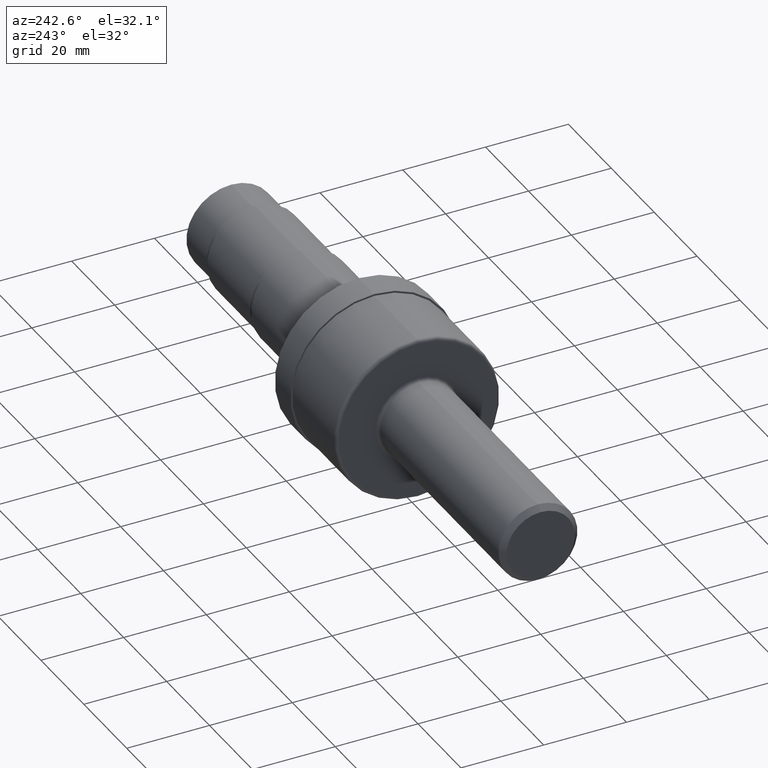
[diagram: clean part render]
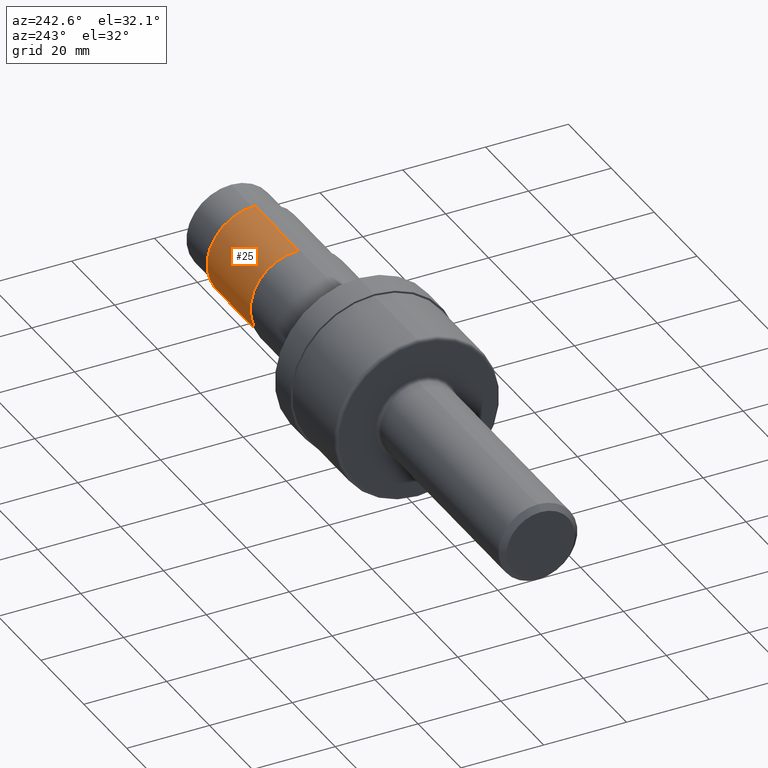
[diagram: same view with one face highlighted and labeled with its STEP entity id]
A machine part, auxiliary view. The second image highlights one B-rep face of the part: STEP entity #25.
In plain terms, the highlighted cylindrical surface (partial cylindrical patch) has radius 11.5926 mm, axis along (-1, -0, -0).
Its self-contained STEP definition (entity closure, byte-faithful):
#25 = ADVANCED_FACE ( 'NONE', ( #578 ), #915, .T. ) ;
#34 = ORIENTED_EDGE ( 'NONE', *, *, #471, .T. ) ;
#45 = CARTESIAN_POINT ( 'NONE',  ( 5.241999999999999105, 5.589287991308519741E-17, -0.4563999999999999724 ) ) ;
#48 = CIRCLE ( 'NONE', #208, 0.4563999999999999724 ) ;
#107 = EDGE_CURVE ( 'NONE', #437, #318, #882, .T. ) ;
#127 = DIRECTION ( 'NONE',  ( -1.000000000000000000, -0.0000000000000000000, -0.0000000000000000000 ) ) ;
#134 = VECTOR ( 'NONE', #839, 39.37007874015748143 ) ;
#153 = CARTESIAN_POINT ( 'NONE',  ( 5.241999999999999105, 0.0000000000000000000, 0.0000000000000000000 ) ) ;
#161 = CARTESIAN_POINT ( 'NONE',  ( 4.447103080001856945, 0.0000000000000000000, 0.0000000000000000000 ) ) ;
#176 = CARTESIAN_POINT ( 'NONE',  ( 5.241999999999999105, 0.0000000000000000000, 0.4563999999999999724 ) ) ;
#185 = AXIS2_PLACEMENT_3D ( 'NONE', #872, #607, #869 ) ;
#203 = CARTESIAN_POINT ( 'NONE',  ( 4.447103080001856945, 0.0000000000000000000, 0.4563999999999999724 ) ) ;
#208 = AXIS2_PLACEMENT_3D ( 'NONE', #161, #127, #451 ) ;
#227 = LINE ( 'NONE', #826, #944 ) ;
#318 = VERTEX_POINT ( 'NONE', #203 ) ;
#376 = VERTEX_POINT ( 'NONE', #45 ) ;
#394 = CARTESIAN_POINT ( 'NONE',  ( 0.0000000000000000000, 0.0000000000000000000, 0.4563999999999999724 ) ) ;
#396 = CIRCLE ( 'NONE', #859, 0.4563999999999999724 ) ;
#411 = CARTESIAN_POINT ( 'NONE',  ( 4.447103080001856945, 5.589287991308519741E-17, -0.4563999999999999724 ) ) ;
#436 = ORIENTED_EDGE ( 'NONE', *, *, #698, .F. ) ;
#437 = VERTEX_POINT ( 'NONE', #176 ) ;
#451 = DIRECTION ( 'NONE',  ( 0.0000000000000000000, 0.0000000000000000000, 1.000000000000000000 ) ) ;
#455 = DIRECTION ( 'NONE',  ( 0.0000000000000000000, 0.0000000000000000000, 1.000000000000000000 ) ) ;
#471 = EDGE_CURVE ( 'NONE', #376, #810, #227, .T. ) ;
#519 = EDGE_LOOP ( 'NONE', ( #807, #34, #436, #825 ) ) ;
#578 = FACE_OUTER_BOUND ( 'NONE', #519, .T. ) ;
#607 = DIRECTION ( 'NONE',  ( -1.000000000000000000, -0.0000000000000000000, -0.0000000000000000000 ) ) ;
#630 = DIRECTION ( 'NONE',  ( -1.000000000000000000, -0.0000000000000000000, -0.0000000000000000000 ) ) ;
#698 = EDGE_CURVE ( 'NONE', #318, #810, #48, .T. ) ;
#741 = EDGE_CURVE ( 'NONE', #437, #376, #396, .T. ) ;
#807 = ORIENTED_EDGE ( 'NONE', *, *, #741, .T. ) ;
#810 = VERTEX_POINT ( 'NONE', #411 ) ;
#825 = ORIENTED_EDGE ( 'NONE', *, *, #107, .F. ) ;
#826 = CARTESIAN_POINT ( 'NONE',  ( 0.0000000000000000000, 5.589287991308519741E-17, -0.4563999999999999724 ) ) ;
#837 = DIRECTION ( 'NONE',  ( -1.000000000000000000, -0.0000000000000000000, -0.0000000000000000000 ) ) ;
#839 = DIRECTION ( 'NONE',  ( -1.000000000000000000, -0.0000000000000000000, -0.0000000000000000000 ) ) ;
#859 = AXIS2_PLACEMENT_3D ( 'NONE', #153, #630, #455 ) ;
#869 = DIRECTION ( 'NONE',  ( 0.0000000000000000000, 0.0000000000000000000, 1.000000000000000000 ) ) ;
#872 = CARTESIAN_POINT ( 'NONE',  ( 0.0000000000000000000, 0.0000000000000000000, 0.0000000000000000000 ) ) ;
#882 = LINE ( 'NONE', #394, #134 ) ;
#915 = CYLINDRICAL_SURFACE ( 'NONE', #185, 0.4563999999999999724 ) ;
#944 = VECTOR ( 'NONE', #837, 39.37007874015748143 ) ;